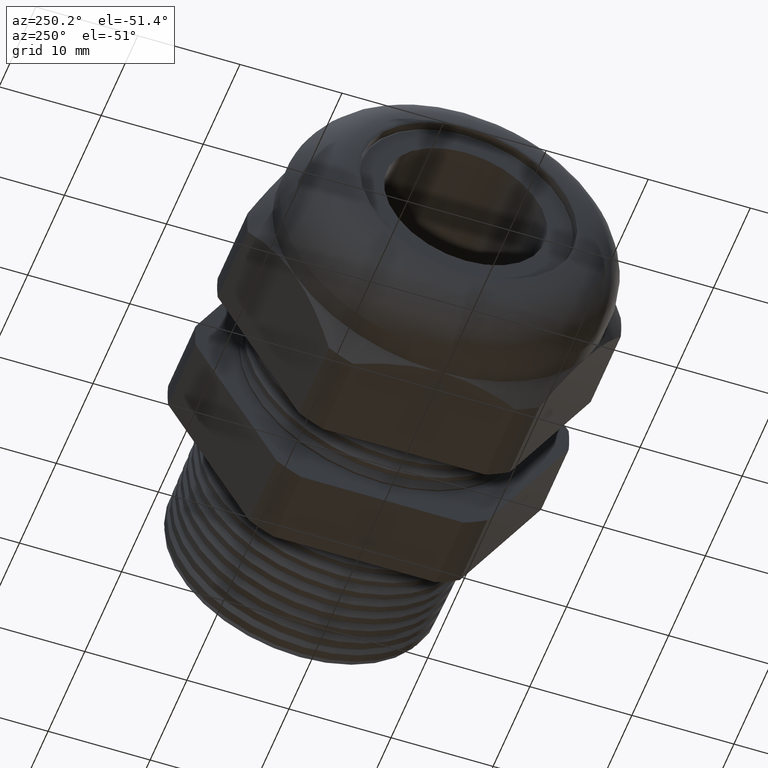
[diagram: clean part render]
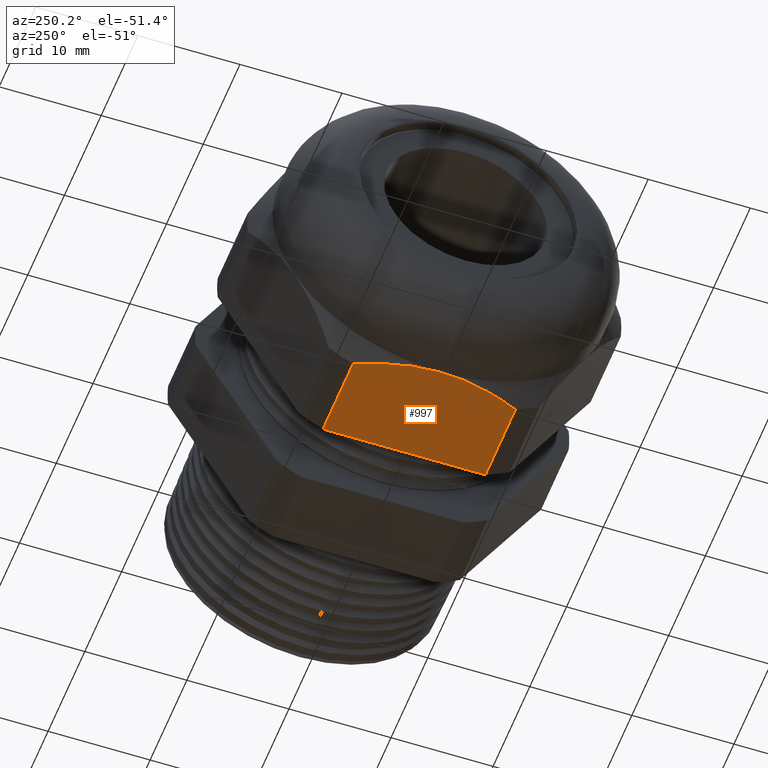
[diagram: same view with one face highlighted and labeled with its STEP entity id]
A machine part, auxiliary view. The second image highlights one B-rep face of the part: STEP entity #997.
In plain terms, the highlighted planar face has unit normal (0, 0, -1).
Its self-contained STEP definition (entity closure, byte-faithful):
#903 = ORIENTED_EDGE ( 'NONE', *, *, #904, .F. ) ;
#904 = EDGE_CURVE ( 'NONE', #905, #996, #2606, .T. ) ;
#905 = VERTEX_POINT ( 'NONE', #2602 ) ;
#906 = ORIENTED_EDGE ( 'NONE', *, *, #907, .F. ) ;
#907 = EDGE_CURVE ( 'NONE', #954, #905, #2601, .T. ) ;
#920 = ORIENTED_EDGE ( 'NONE', *, *, #946, .T. ) ;
#921 = ORIENTED_EDGE ( 'NONE', *, *, #922, .T. ) ;
#922 = EDGE_CURVE ( 'NONE', #948, #3656, #2634, .T. ) ;
#946 = EDGE_CURVE ( 'NONE', #954, #948, #2696, .T. ) ;
#948 = VERTEX_POINT ( 'NONE', #2692 ) ;
#954 = VERTEX_POINT ( 'NONE', #2737 ) ;
#994 = ORIENTED_EDGE ( 'NONE', *, *, #995, .T. ) ;
#995 = EDGE_CURVE ( 'NONE', #3656, #996, #2789, .T. ) ;
#996 = VERTEX_POINT ( 'NONE', #2788 ) ;
#997 = ADVANCED_FACE ( 'NONE', ( #2790 ), #2786, .T. ) ;
#998 = EDGE_LOOP ( 'NONE', ( #920, #921, #994, #903, #906 ) ) ;
#2598 = DIRECTION ( 'NONE',  ( 0.0000000000000000000, 1.000000000000000000, 0.0000000000000000000 ) ) ;
#2599 = VECTOR ( 'NONE', #2598, 39.37007874015748100 ) ;
#2600 = CARTESIAN_POINT ( 'NONE',  ( -0.8410236220472443500, 0.5600000000000000500, -0.6500000000000001300 ) ) ;
#2601 = LINE ( 'NONE', #2600, #2599 ) ;
#2602 = CARTESIAN_POINT ( 'NONE',  ( -0.8410236220472443500, 0.3131489262315934100, -0.6500000000000001300 ) ) ;
#2603 = DIRECTION ( 'NONE',  ( -1.000000000000000000, 0.0000000000000000000, 0.0000000000000000000 ) ) ;
#2604 = VECTOR ( 'NONE', #2603, 39.37007874015748100 ) ;
#2605 = CARTESIAN_POINT ( 'NONE',  ( 0.2800000000000000300, 0.3131489262315934100, -0.6500000000000001300 ) ) ;
#2606 = LINE ( 'NONE', #2605, #2604 ) ;
#2628 = CARTESIAN_POINT ( 'NONE',  ( -1.209091514772332700, -0.1860728161737495700, -0.6500000000000001300 ) ) ;
#2629 = CARTESIAN_POINT ( 'NONE',  ( -1.201467637304893400, -0.2119448594679243800, -0.6500000000000000200 ) ) ;
#2630 = CARTESIAN_POINT ( 'NONE',  ( -1.183848400135287100, -0.2632641016272521100, -0.6500000000000001300 ) ) ;
#2631 = CARTESIAN_POINT ( 'NONE',  ( -1.173931998907687700, -0.2884784734615903900, -0.6500000000000000200 ) ) ;
#2632 = CARTESIAN_POINT ( 'NONE',  ( -1.163224409448819100, -0.3131489262315934100, -0.6500000000000001300 ) ) ;
#2634 = B_SPLINE_CURVE_WITH_KNOTS ( 'NONE', 3,
 ( #2632, #2631, #2630, #2629, #2628, #2685, #2684, #2683 ),
 .UNSPECIFIED., .F., .F.,
 ( 4, 2, 2, 4 ),
 ( 0.01177678614916235000, 0.01381288773391724400, 0.01584898931867213800, 0.01992119248818193000 ),
 .UNSPECIFIED. ) ;
#2683 = CARTESIAN_POINT ( 'NONE',  ( -1.234724409448819000, 0.0000000000000000000, -0.6500000000000001300 ) ) ;
#2684 = CARTESIAN_POINT ( 'NONE',  ( -1.234724409448818300, -0.05447567936366844900, -0.6500000000000000200 ) ) ;
#2685 = CARTESIAN_POINT ( 'NONE',  ( -1.227815665476035300, -0.1077136765109595300, -0.6500000000000001300 ) ) ;
#2692 = CARTESIAN_POINT ( 'NONE',  ( -1.163224409448819100, -0.3131489262315934100, -0.6500000000000001300 ) ) ;
#2693 = DIRECTION ( 'NONE',  ( -1.000000000000000000, 0.0000000000000000000, 0.0000000000000000000 ) ) ;
#2694 = VECTOR ( 'NONE', #2693, 39.37007874015748100 ) ;
#2695 = CARTESIAN_POINT ( 'NONE',  ( 0.2800000000000000300, -0.3131489262315934100, -0.6500000000000001300 ) ) ;
#2696 = LINE ( 'NONE', #2695, #2694 ) ;
#2737 = CARTESIAN_POINT ( 'NONE',  ( -0.8410236220472443500, -0.3131489262315934100, -0.6500000000000001300 ) ) ;
#2779 = CARTESIAN_POINT ( 'NONE',  ( -1.201442304199997800, 0.2120229154253343000, -0.6500000000000000200 ) ) ;
#2780 = CARTESIAN_POINT ( 'NONE',  ( -1.209063373979636800, 0.1861735441654880600, -0.6500000000000001300 ) ) ;
#2781 = CARTESIAN_POINT ( 'NONE',  ( -1.221549607637757200, 0.1339536167969819200, -0.6500000000000001300 ) ) ;
#2782 = CARTESIAN_POINT ( 'NONE',  ( -1.226413132082744900, 0.1075827506458429100, -0.6500000000000001300 ) ) ;
#2783 = CARTESIAN_POINT ( 'NONE',  ( -1.233001708289443600, 0.05424748414116245500, -0.6500000000000001300 ) ) ;
#2784 = CARTESIAN_POINT ( 'NONE',  ( -1.234724409448818800, 0.02720867923416876000, -0.6499999999999999100 ) ) ;
#2785 = CARTESIAN_POINT ( 'NONE',  ( -1.234724409448819000, 0.0000000000000000000, -0.6500000000000001300 ) ) ;
#2786 = PLANE ( 'NONE',  #2834 ) ;
#2787 = CARTESIAN_POINT ( 'NONE',  ( 0.2800000000000000300, 0.3131489262315934100, -0.6500000000000001300 ) ) ;
#2788 = CARTESIAN_POINT ( 'NONE',  ( -1.163224409448819100, 0.3131489262315934100, -0.6500000000000001300 ) ) ;
#2789 = B_SPLINE_CURVE_WITH_KNOTS ( 'NONE', 3,
 ( #2785, #2784, #2783, #2782, #2781, #2780, #2779, #2837, #2836, #2835 ),
 .UNSPECIFIED., .F., .F.,
 ( 4, 2, 2, 2, 4 ),
 ( 0.01992119248818193000, 0.02195511425124768700, 0.02398903601431344800, 0.02602295777737920500, 0.02805687954044496300 ),
 .UNSPECIFIED. ) ;
#2790 = FACE_OUTER_BOUND ( 'NONE', #998, .T. ) ;
#2832 = DIRECTION ( 'NONE',  ( -1.000000000000000000, 0.0000000000000000000, 0.0000000000000000000 ) ) ;
#2833 = DIRECTION ( 'NONE',  ( 0.0000000000000000000, 0.0000000000000000000, -1.000000000000000000 ) ) ;
#2834 = AXIS2_PLACEMENT_3D ( 'NONE', #2787, #2833, #2832 ) ;
#2835 = CARTESIAN_POINT ( 'NONE',  ( -1.163224409448819100, 0.3131489262315934100, -0.6500000000000001300 ) ) ;
#2836 = CARTESIAN_POINT ( 'NONE',  ( -1.173924670275582100, 0.2884953587440260400, -0.6500000000000000200 ) ) ;
#2837 = CARTESIAN_POINT ( 'NONE',  ( -1.183842894594862900, 0.2632758613625139100, -0.6500000000000001300 ) ) ;
#3080 = CARTESIAN_POINT ( 'NONE',  ( -1.234724409448819000, 0.0000000000000000000, -0.6500000000000001300 ) ) ;
#3656 = VERTEX_POINT ( 'NONE', #3080 ) ;